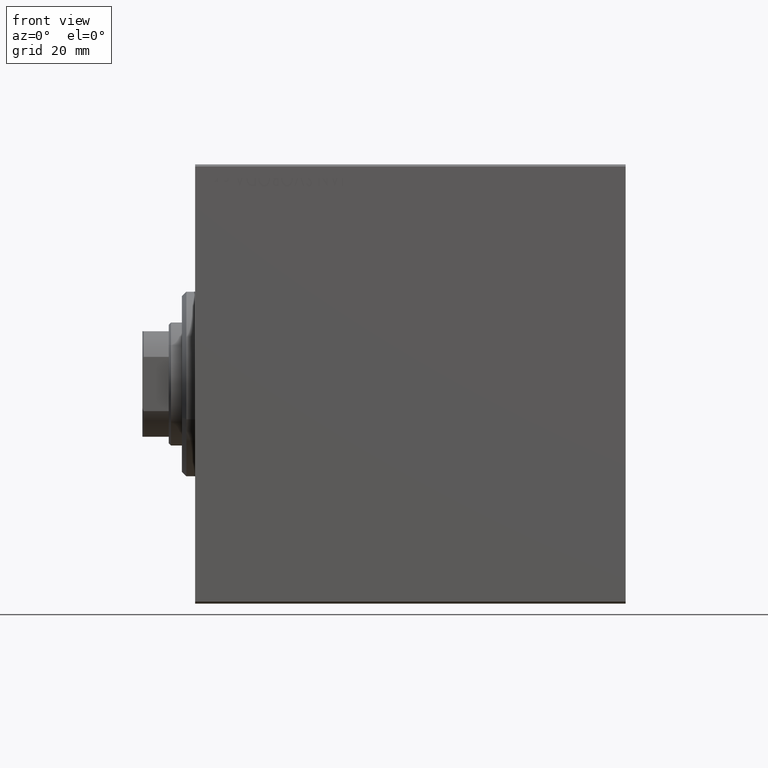
[diagram: clean part render]
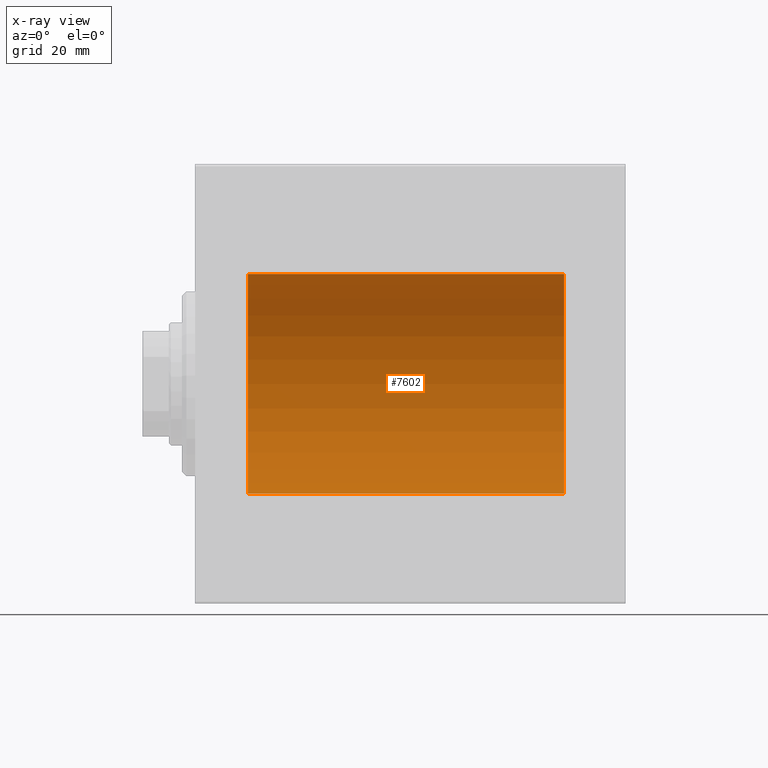
[diagram: x-ray — body ghosted, one internal face saturated and labeled with its STEP entity id]
A machine part, front view, then the same camera in x-ray: the body is ghosted and one INTERNAL B-rep face — a face not visible from any outside direction — is saturated and labeled: STEP entity #7602.
In plain terms, the highlighted cylindrical surface (partial cylindrical patch) has radius 25 mm, axis along (-1, -0, -0).
Its self-contained STEP definition (entity closure, byte-faithful):
#709 = DIRECTION ( 'NONE',  ( 0.000000000000000000, 0.000000000000000000, 1.000000000000000000 ) ) ;
#845 = CYLINDRICAL_SURFACE ( 'NONE', #28195, 25.00000000000000000 ) ;
#3090 = EDGE_CURVE ( 'NONE', #27300, #16264, #17714, .T. ) ;
#5102 = CARTESIAN_POINT ( 'NONE',  ( 84.00000000000000000, 3.061616997868382254E-15, -25.00000000000000000 ) ) ;
#6944 = ORIENTED_EDGE ( 'NONE', *, *, #40406, .T. ) ;
#7252 = CARTESIAN_POINT ( 'NONE',  ( 11.99999999999999645, 3.061616997868382254E-15, -25.00000000000000000 ) ) ;
#7602 = ADVANCED_FACE ( 'NONE', ( #25095 ), #845, .F. ) ;
#10496 = VECTOR ( 'NONE', #18133, 1000.000000000000000 ) ;
#11305 = VERTEX_POINT ( 'NONE', #26359 ) ;
#12246 = AXIS2_PLACEMENT_3D ( 'NONE', #40704, #34725, #40928 ) ;
#12926 = ORIENTED_EDGE ( 'NONE', *, *, #39087, .F. ) ;
#14627 = CARTESIAN_POINT ( 'NONE',  ( 84.00000000000000000, 3.061616997868382254E-15, -25.00000000000000000 ) ) ;
#16264 = VERTEX_POINT ( 'NONE', #7252 ) ;
#17479 = CARTESIAN_POINT ( 'NONE',  ( 84.00000000000000000, 0.000000000000000000, 0.000000000000000000 ) ) ;
#17714 = LINE ( 'NONE', #5102, #10496 ) ;
#18133 = DIRECTION ( 'NONE',  ( -1.000000000000000000, -0.000000000000000000, -0.000000000000000000 ) ) ;
#20710 = DIRECTION ( 'NONE',  ( -1.000000000000000000, -0.000000000000000000, -0.000000000000000000 ) ) ;
#24129 = EDGE_LOOP ( 'NONE', ( #32453, #12926, #33783, #6944 ) ) ;
#24903 = CIRCLE ( 'NONE', #29124, 25.00000000000000000 ) ;
#25095 = FACE_OUTER_BOUND ( 'NONE', #24129, .T. ) ;
#26359 = CARTESIAN_POINT ( 'NONE',  ( 11.99999999999999645, 0.000000000000000000, 25.00000000000000000 ) ) ;
#26483 = VERTEX_POINT ( 'NONE', #26564 ) ;
#26564 = CARTESIAN_POINT ( 'NONE',  ( 84.00000000000000000, 0.000000000000000000, 25.00000000000000000 ) ) ;
#27300 = VERTEX_POINT ( 'NONE', #14627 ) ;
#28195 = AXIS2_PLACEMENT_3D ( 'NONE', #38570, #20710, #38139 ) ;
#29124 = AXIS2_PLACEMENT_3D ( 'NONE', #17479, #30929, #709 ) ;
#30929 = DIRECTION ( 'NONE',  ( -1.000000000000000000, 0.000000000000000000, 0.000000000000000000 ) ) ;
#32453 = ORIENTED_EDGE ( 'NONE', *, *, #3090, .F. ) ;
#33783 = ORIENTED_EDGE ( 'NONE', *, *, #36963, .T. ) ;
#34725 = DIRECTION ( 'NONE',  ( -1.000000000000000000, 0.000000000000000000, 0.000000000000000000 ) ) ;
#35078 = DIRECTION ( 'NONE',  ( -1.000000000000000000, -0.000000000000000000, -0.000000000000000000 ) ) ;
#35389 = VECTOR ( 'NONE', #35078, 1000.000000000000000 ) ;
#36963 = EDGE_CURVE ( 'NONE', #26483, #11305, #38411, .T. ) ;
#37647 = CIRCLE ( 'NONE', #12246, 25.00000000000000000 ) ;
#38139 = DIRECTION ( 'NONE',  ( 0.000000000000000000, 0.000000000000000000, 1.000000000000000000 ) ) ;
#38411 = LINE ( 'NONE', #38849, #35389 ) ;
#38570 = CARTESIAN_POINT ( 'NONE',  ( 84.00000000000000000, 0.000000000000000000, 0.000000000000000000 ) ) ;
#38849 = CARTESIAN_POINT ( 'NONE',  ( 84.00000000000000000, 0.000000000000000000, 25.00000000000000000 ) ) ;
#39087 = EDGE_CURVE ( 'NONE', #26483, #27300, #24903, .T. ) ;
#40406 = EDGE_CURVE ( 'NONE', #11305, #16264, #37647, .T. ) ;
#40704 = CARTESIAN_POINT ( 'NONE',  ( 11.99999999999999645, 0.000000000000000000, 0.000000000000000000 ) ) ;
#40928 = DIRECTION ( 'NONE',  ( 0.000000000000000000, 0.000000000000000000, 1.000000000000000000 ) ) ;